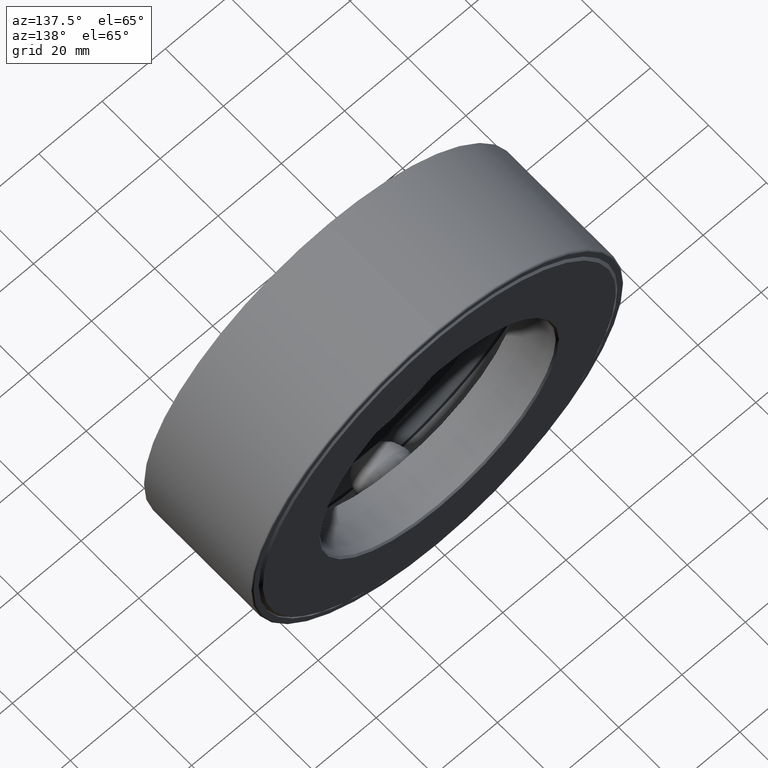
[diagram: clean part render]
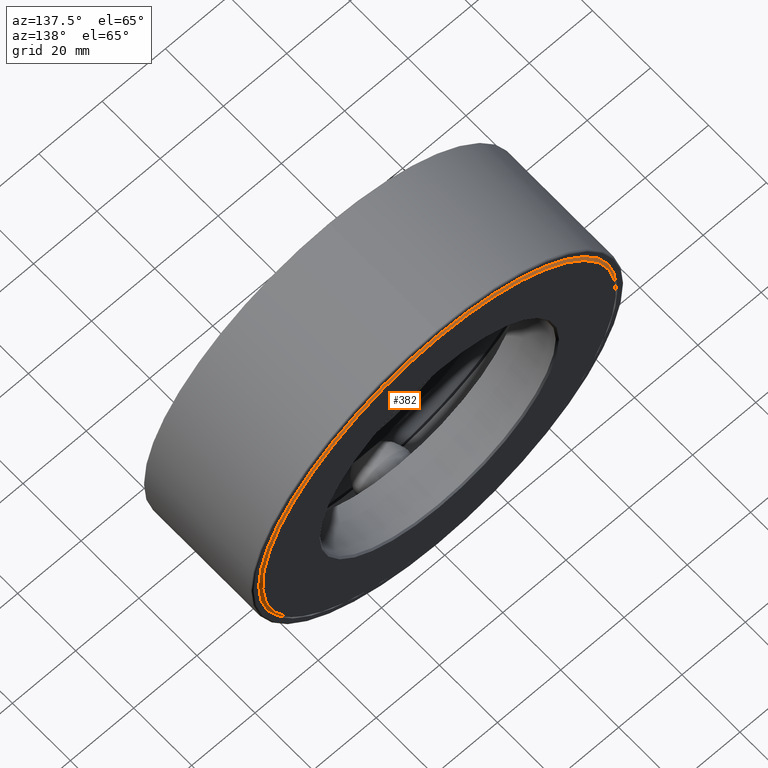
[diagram: same view with one face highlighted and labeled with its STEP entity id]
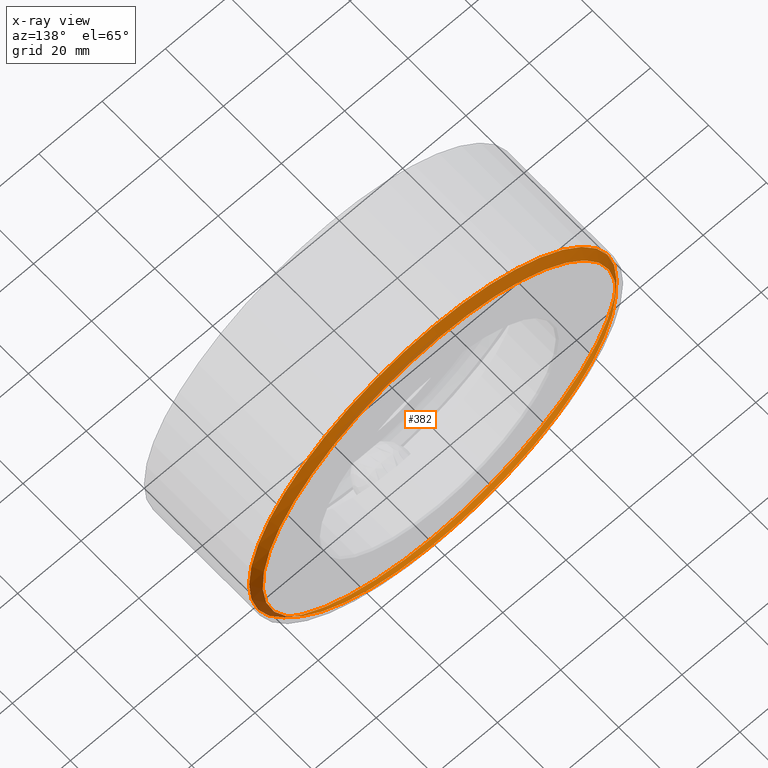
[diagram: x-ray of the same camera — body ghosted, the highlighted face saturated]
A machine part, auxiliary view. The second image highlights one B-rep face of the part: STEP entity #382.
The next image is the same camera in x-ray: the body ghosted, the highlighted face saturated — about 0% of this face is hidden behind the body in this view.
In plain terms, the highlighted conical surface has half-angle 45 deg.
Its self-contained STEP definition (entity closure, byte-faithful):
#20 = FACE_OUTER_BOUND ( 'NONE', #373, .T. ) ;
#23 = DIRECTION ( 'NONE',  ( 0.0000000000000000000, 0.0000000000000000000, 1.000000000000000000 ) ) ;
#24 = ORIENTED_EDGE ( 'NONE', *, *, #495, .T. ) ;
#34 = CARTESIAN_POINT ( 'NONE',  ( 0.0000000000000000000, 1.412000000000000600, 2.285499999999999400 ) ) ;
#63 = FACE_BOUND ( 'NONE', #322, .T. ) ;
#71 = DIRECTION ( 'NONE',  ( 0.0000000000000000000, 0.0000000000000000000, 1.000000000000000000 ) ) ;
#84 = CIRCLE ( 'NONE', #104, 2.197499999999999800 ) ;
#104 = AXIS2_PLACEMENT_3D ( 'NONE', #305, #528, #23 ) ;
#111 = CARTESIAN_POINT ( 'NONE',  ( 0.0000000000000000000, 1.500000000000000200, 0.0000000000000000000 ) ) ;
#118 = CONICAL_SURFACE ( 'NONE', #515, 2.197499999999999800, 0.7853981633974498300 ) ;
#123 = AXIS2_PLACEMENT_3D ( 'NONE', #560, #177, #71 ) ;
#175 = VERTEX_POINT ( 'NONE', #266 ) ;
#177 = DIRECTION ( 'NONE',  ( -0.0000000000000000000, 1.000000000000000000, -0.0000000000000000000 ) ) ;
#219 = CIRCLE ( 'NONE', #123, 2.285499999999999400 ) ;
#266 = CARTESIAN_POINT ( 'NONE',  ( 0.0000000000000000000, 1.500000000000000200, 2.197499999999999800 ) ) ;
#278 = EDGE_CURVE ( 'NONE', #175, #175, #84, .T. ) ;
#305 = CARTESIAN_POINT ( 'NONE',  ( 0.0000000000000000000, 1.500000000000000200, 0.0000000000000000000 ) ) ;
#322 = EDGE_LOOP ( 'NONE', ( #350 ) ) ;
#350 = ORIENTED_EDGE ( 'NONE', *, *, #278, .F. ) ;
#373 = EDGE_LOOP ( 'NONE', ( #24 ) ) ;
#382 = ADVANCED_FACE ( 'NONE', ( #20, #63 ), #118, .T. ) ;
#391 = DIRECTION ( 'NONE',  ( 0.0000000000000000000, -1.000000000000000000, 0.0000000000000000000 ) ) ;
#460 = VERTEX_POINT ( 'NONE', #34 ) ;
#495 = EDGE_CURVE ( 'NONE', #460, #460, #219, .T. ) ;
#515 = AXIS2_PLACEMENT_3D ( 'NONE', #111, #391, #591 ) ;
#528 = DIRECTION ( 'NONE',  ( -0.0000000000000000000, 1.000000000000000000, -0.0000000000000000000 ) ) ;
#560 = CARTESIAN_POINT ( 'NONE',  ( 0.0000000000000000000, 1.412000000000000600, 0.0000000000000000000 ) ) ;
#591 = DIRECTION ( 'NONE',  ( 0.0000000000000000000, 0.0000000000000000000, -1.000000000000000000 ) ) ;